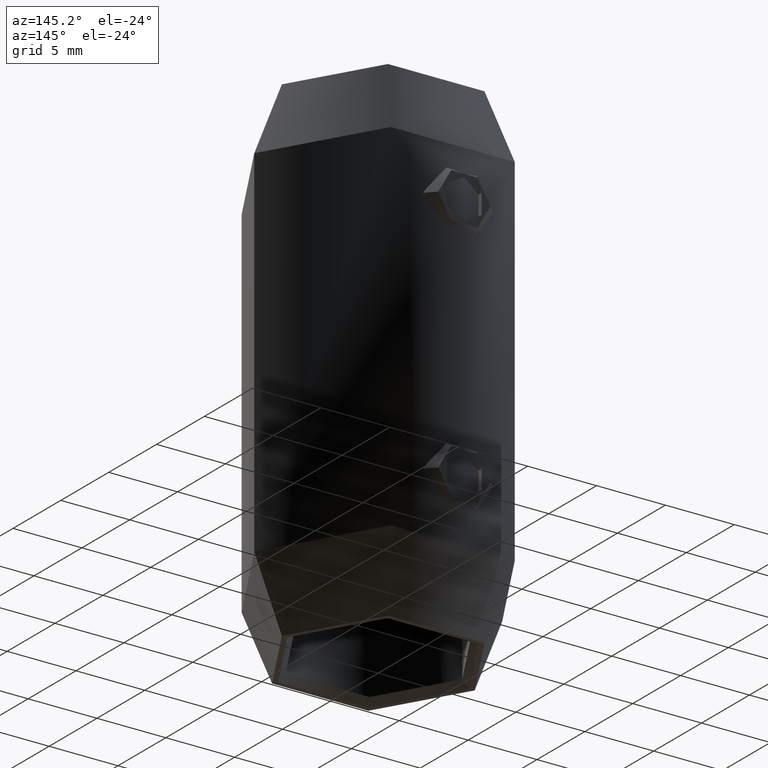
[diagram: clean part render]
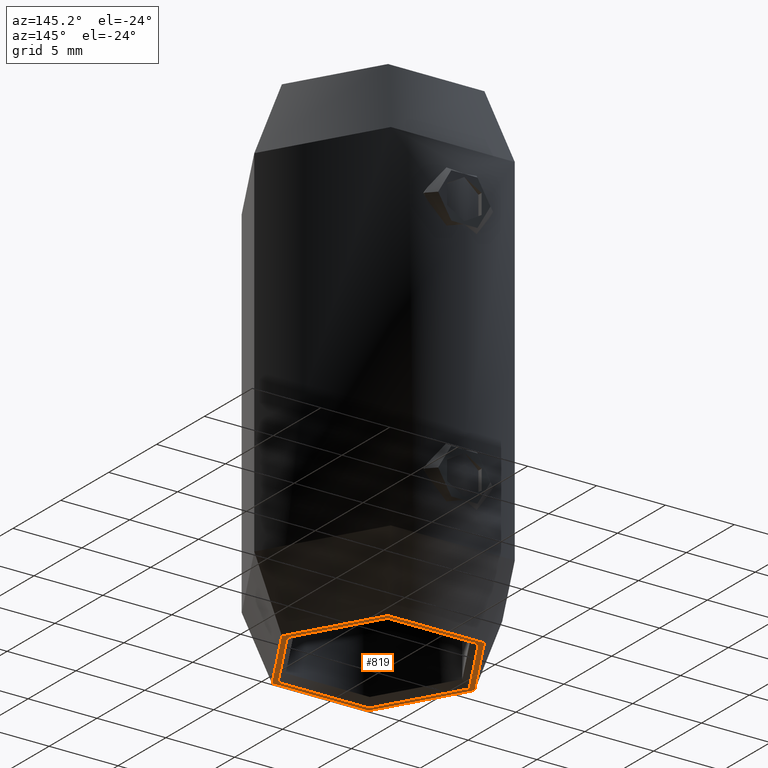
[diagram: same view with one face highlighted and labeled with its STEP entity id]
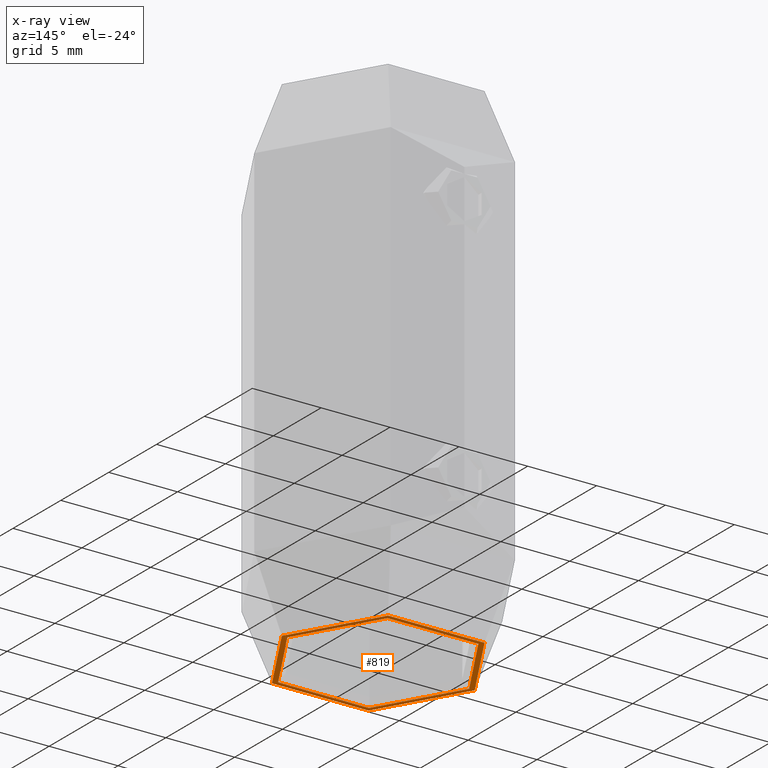
[diagram: x-ray of the same camera — body ghosted, the highlighted face saturated]
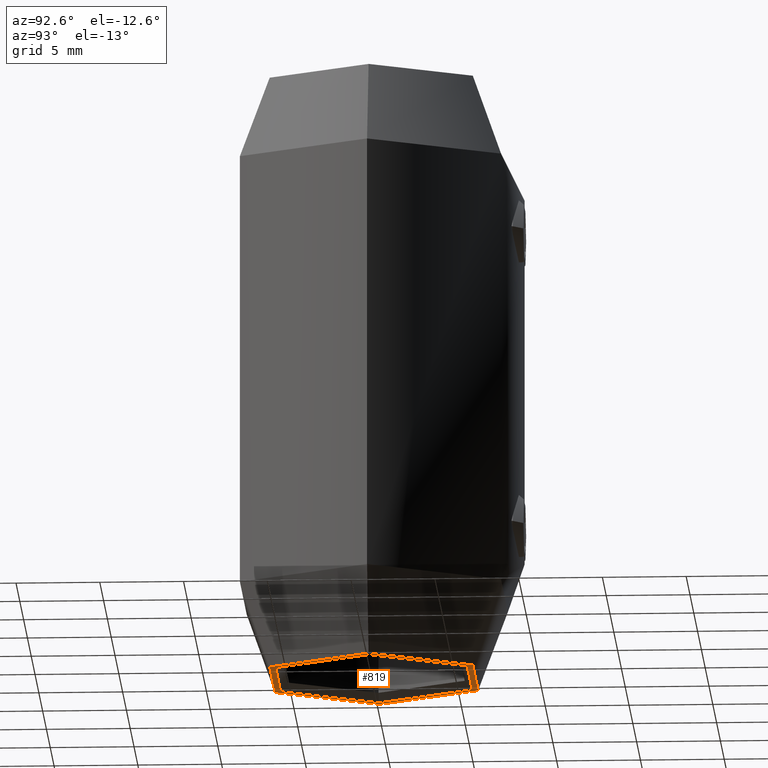
[diagram: same view with one face highlighted and labeled with its STEP entity id]
A machine part, auxiliary view. The second image highlights one B-rep face of the part: STEP entity #819.
The next image is the same camera in x-ray: the body ghosted, the highlighted face saturated — about 0% of this face is hidden behind the body in this view.
A second angle (auxiliary view) of the same face is appended — the face is thin or edge-on in the first view.
In plain terms, the highlighted planar face has unit normal (0, 0, 1).
Its self-contained STEP definition (entity closure, byte-faithful):
#616 = VERTEX_POINT ( 'NONE', #14720 ) ;
#771 = DIRECTION ( 'NONE',  ( 0.000000000000000000, -0.000000000000000000, 1.000000000000000000 ) ) ;
#819 = ADVANCED_FACE ( 'NONE', ( #3261, #14699 ), #1998, .F. ) ;
#1998 = PLANE ( 'NONE',  #2398 ) ;
#2394 = DIRECTION ( 'NONE',  ( -0.000000000000000000, -0.000000000000000000, 1.000000000000000000 ) ) ;
#2398 = AXIS2_PLACEMENT_3D ( 'NONE', #5730, #771, #7069 ) ;
#3130 = CIRCLE ( 'NONE', #12473, 6.599999999999997868 ) ;
#3261 = FACE_BOUND ( 'NONE', #14863, .T. ) ;
#3716 = DIRECTION ( 'NONE',  ( 1.000000000000000000, 0.000000000000000000, 0.000000000000000000 ) ) ;
#4103 = CIRCLE ( 'NONE', #4482, 7.000000000000000000 ) ;
#4207 = CARTESIAN_POINT ( 'NONE',  ( 6.599999999999997868, 8.082668874372529047E-16, -18.00000000000000000 ) ) ;
#4482 = AXIS2_PLACEMENT_3D ( 'NONE', #4791, #7233, #7117 ) ;
#4614 = VERTEX_POINT ( 'NONE', #4207 ) ;
#4703 = EDGE_CURVE ( 'NONE', #616, #12972, #14282, .T. ) ;
#4791 = CARTESIAN_POINT ( 'NONE',  ( 0.000000000000000000, 0.000000000000000000, -18.00000000000000000 ) ) ;
#4830 = CARTESIAN_POINT ( 'NONE',  ( 7.000000000000000000, 0.000000000000000000, -18.00000000000000000 ) ) ;
#4845 = EDGE_LOOP ( 'NONE', ( #12879, #5200 ) ) ;
#5200 = ORIENTED_EDGE ( 'NONE', *, *, #4703, .F. ) ;
#5730 = CARTESIAN_POINT ( 'NONE',  ( 0.000000000000000000, 6.099999999999999645, -18.00000000000000000 ) ) ;
#6052 = ORIENTED_EDGE ( 'NONE', *, *, #14608, .T. ) ;
#6058 = CARTESIAN_POINT ( 'NONE',  ( 0.000000000000000000, 0.000000000000000000, -18.00000000000000000 ) ) ;
#6355 = EDGE_CURVE ( 'NONE', #12972, #616, #4103, .T. ) ;
#7069 = DIRECTION ( 'NONE',  ( 1.000000000000000000, 0.000000000000000000, 0.000000000000000000 ) ) ;
#7117 = DIRECTION ( 'NONE',  ( 1.000000000000000000, 0.000000000000000000, 0.000000000000000000 ) ) ;
#7147 = EDGE_CURVE ( 'NONE', #7341, #4614, #3130, .T. ) ;
#7233 = DIRECTION ( 'NONE',  ( -0.000000000000000000, -0.000000000000000000, 1.000000000000000000 ) ) ;
#7310 = CARTESIAN_POINT ( 'NONE',  ( -6.599999999999997868, 0.000000000000000000, -18.00000000000000000 ) ) ;
#7341 = VERTEX_POINT ( 'NONE', #7310 ) ;
#7780 = DIRECTION ( 'NONE',  ( -0.000000000000000000, -0.000000000000000000, 1.000000000000000000 ) ) ;
#7980 = CIRCLE ( 'NONE', #12937, 6.599999999999997868 ) ;
#8627 = DIRECTION ( 'NONE',  ( -0.000000000000000000, -0.000000000000000000, 1.000000000000000000 ) ) ;
#9709 = ORIENTED_EDGE ( 'NONE', *, *, #7147, .T. ) ;
#10219 = CARTESIAN_POINT ( 'NONE',  ( 0.000000000000000000, 0.000000000000000000, -18.00000000000000000 ) ) ;
#10621 = AXIS2_PLACEMENT_3D ( 'NONE', #10219, #7780, #15335 ) ;
#11227 = CARTESIAN_POINT ( 'NONE',  ( 0.000000000000000000, 0.000000000000000000, -18.00000000000000000 ) ) ;
#12473 = AXIS2_PLACEMENT_3D ( 'NONE', #6058, #8627, #3716 ) ;
#12879 = ORIENTED_EDGE ( 'NONE', *, *, #6355, .F. ) ;
#12937 = AXIS2_PLACEMENT_3D ( 'NONE', #11227, #2394, #14830 ) ;
#12972 = VERTEX_POINT ( 'NONE', #4830 ) ;
#14282 = CIRCLE ( 'NONE', #10621, 7.000000000000000000 ) ;
#14608 = EDGE_CURVE ( 'NONE', #4614, #7341, #7980, .T. ) ;
#14699 = FACE_OUTER_BOUND ( 'NONE', #4845, .T. ) ;
#14720 = CARTESIAN_POINT ( 'NONE',  ( -7.000000000000000000, 9.797174393178823685E-16, -18.00000000000000000 ) ) ;
#14830 = DIRECTION ( 'NONE',  ( 1.000000000000000000, 0.000000000000000000, 0.000000000000000000 ) ) ;
#14863 = EDGE_LOOP ( 'NONE', ( #9709, #6052 ) ) ;
#15335 = DIRECTION ( 'NONE',  ( 1.000000000000000000, 0.000000000000000000, 0.000000000000000000 ) ) ;